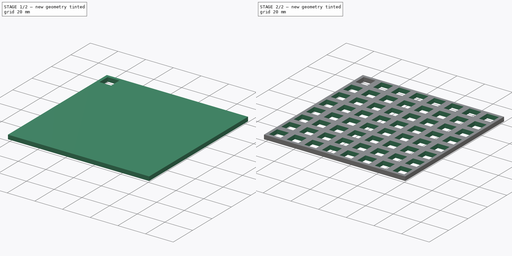
[diagram: build sequence overview — one tinted view per stage of 2, left to right]
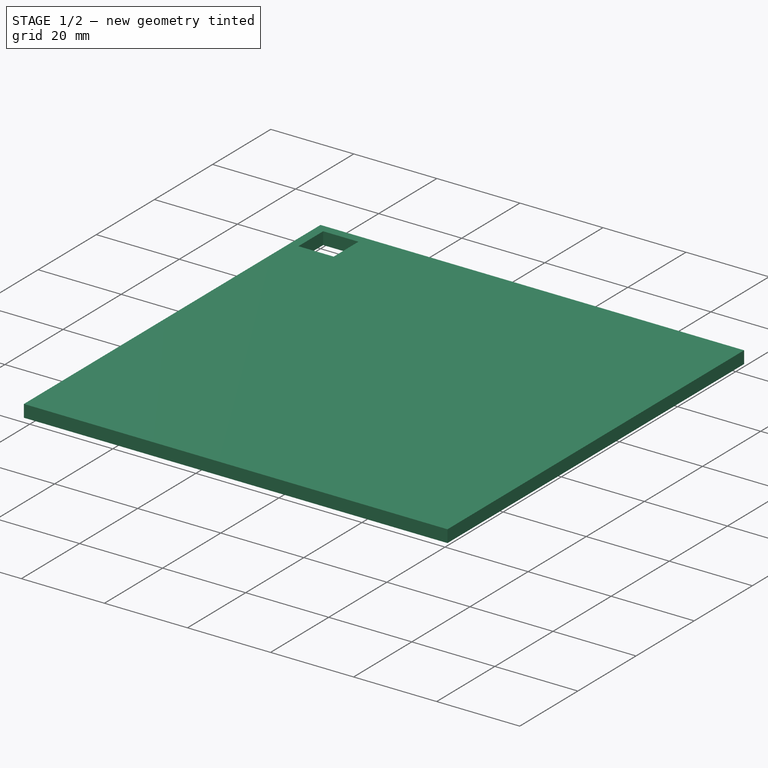
[diagram: stage 1 of 2 — iso view after this stage's code; geometry added in this stage tinted green]
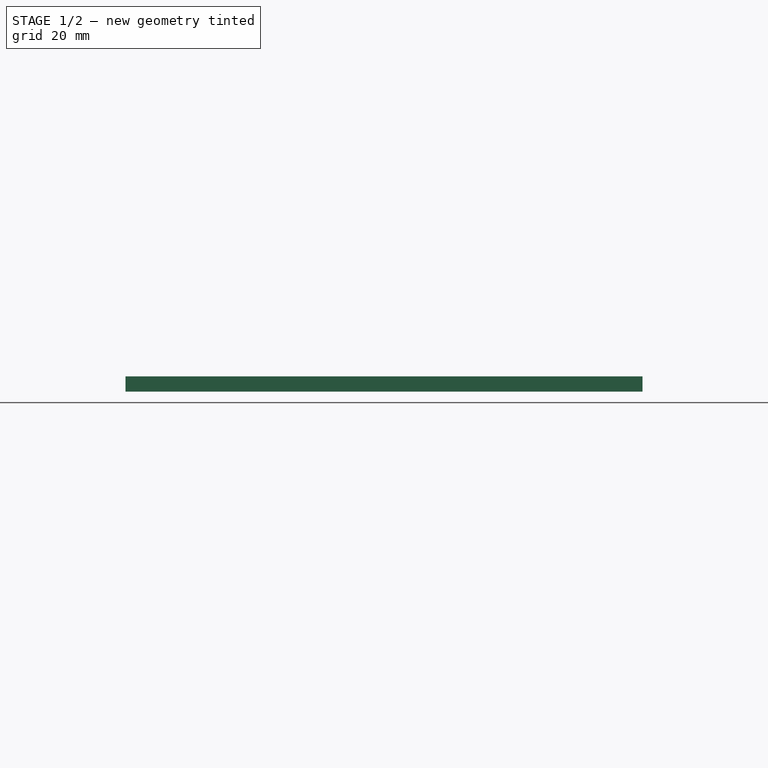
[diagram: stage 1 of 2 — front view after this stage's code; geometry added in this stage tinted green]
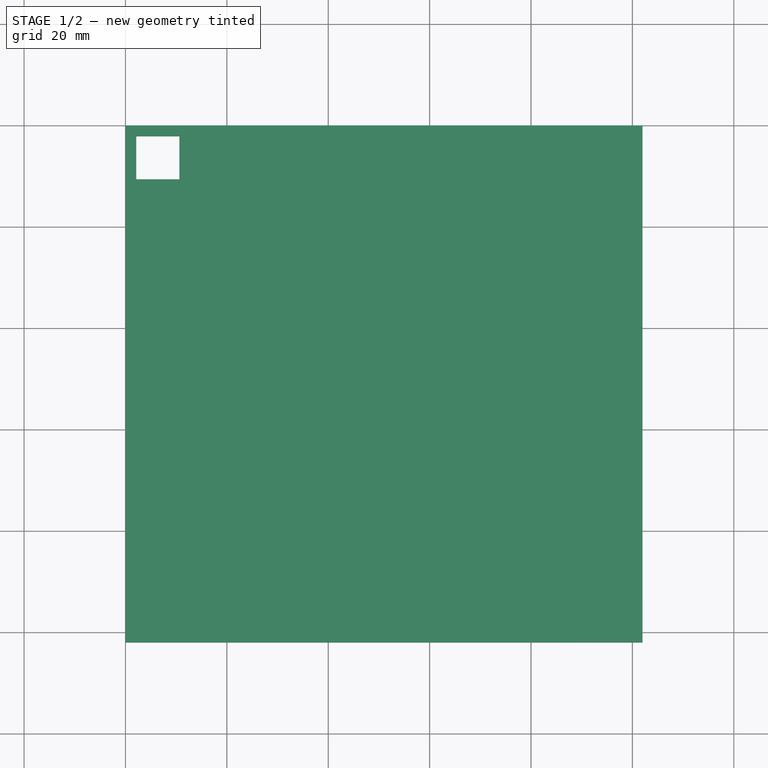
[diagram: stage 1 of 2 — top view after this stage's code; geometry added in this stage tinted green]
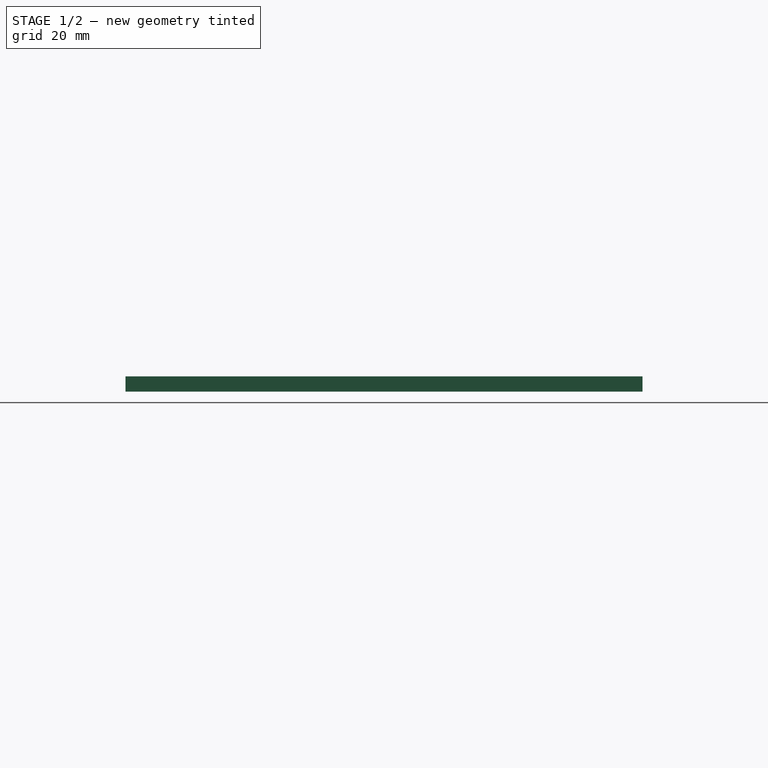
[diagram: stage 1 of 2 — right view after this stage's code; geometry added in this stage tinted green]
FCSTD DOCUMENT  (FreeCAD 0.19R24291 (Git))
Label: modular_stamp_base_v1
License: Other
LicenseURL: https://ohwr.org/project/cernohl/wikis/Documents/CERN-OHL-version-2
objects: Sketcher::SketchObject×2, PartDesign::LinearPattern×2, PartDesign::Pad×1, PartDesign::Pocket×1, PartDesign::MultiTransform×1, PartDesign::Body×1, Part::Part2DObjectPython×1
note: 11 computed .brp shape members not serialized (recipe doc carries the construction recipe); baked Part::Feature solids carry a one-line shape summary decoded from their .brp

FEATURE [Sketcher::SketchObject] Sketch
  FullyConstrained = true
  MapMode = 5
  Support = -> [XY_Plane]
  sketch-geometry (4):
    g0: LineSegment StartX=0 StartY=0 StartZ=0 EndX=102 EndY=0 EndZ=0
    g1: LineSegment StartX=102 StartY=0 StartZ=0 EndX=102 EndY=-102 EndZ=0
    g2: LineSegment StartX=102 StartY=-102 StartZ=0 EndX=0 EndY=-102 EndZ=0
    g3: LineSegment StartX=0 StartY=-102 StartZ=0 EndX=0 EndY=0 EndZ=0
  constraints (11):
    c: Coincident(g0,g1)
    c: Coincident(g1,g2)
    c: Coincident(g2,g3)
    c: Coincident(g3,g0)
    c: Horizontal(g0)
    c: Horizontal(g2)
    c: Vertical(g1)
    c: Vertical(g3)
    c: Equal(g0,g3)
    c: Coincident(g0,g-1)
    c: DistanceX(g0,g0) = 102
FEATURE [PartDesign::Pad] Pad
  Direction = (1,1,1)
  Length = 3
  Length2 = 100
  Profile = -> Sketch
  Type = 0
FEATURE [Sketcher::SketchObject] Sketch001
  FullyConstrained = true
  MapMode = 5
  Placement = pos=(0,0,3) rot=(0,0,1;0rad)
  Support = -> [Pad]
  expr: Constraints[17] = 4.25 / 2
  sketch-geometry (6):
    g0: LineSegment StartX=2.125 StartY=-2.125 StartZ=0 EndX=10.625 EndY=-2.125 EndZ=0
    g1: LineSegment StartX=10.625 StartY=-2.125 StartZ=0 EndX=10.625 EndY=-10.625 EndZ=0
    g2: LineSegment StartX=10.625 StartY=-10.625 StartZ=0 EndX=2.125 EndY=-10.625 EndZ=0
    g3: LineSegment StartX=2.125 StartY=-10.625 StartZ=0 EndX=2.125 EndY=-2.125 EndZ=0
    g4: LineSegment StartX=2.125 StartY=-2.125 StartZ=0 EndX=0 EndY=-2.125 EndZ=0
    g5: LineSegment StartX=2.125 StartY=-2.125 StartZ=0 EndX=2.125 EndY=0 EndZ=0
  constraints (18):
    c: Coincident(g0,g1)
    c: Coincident(g1,g2)
    c: Coincident(g2,g3)
    c: Coincident(g3,g0)
    c: Horizontal(g0)
    c: Horizontal(g2)
    c: Vertical(g1)
    c: Vertical(g3)
    c: Equal(g3,g0)
    c: DistanceX(g0,g0) = 8.5
    c: Coincident(g4,g0)
    c: PointOnObject(g4,g-2)
    c: Horizontal(g4)
    c: Coincident(g5,g0)
    c: PointOnObject(g5,g-1)
    c: Vertical(g5)
    c: Equal(g5,g4)
    c: DistanceX(g4,g4) = 2.125
FEATURE [PartDesign::Pocket] Pocket
  BaseFeature = -> Pad
  Length = 5
  Length2 = 100
  Profile = -> Sketch001
  Type = 1
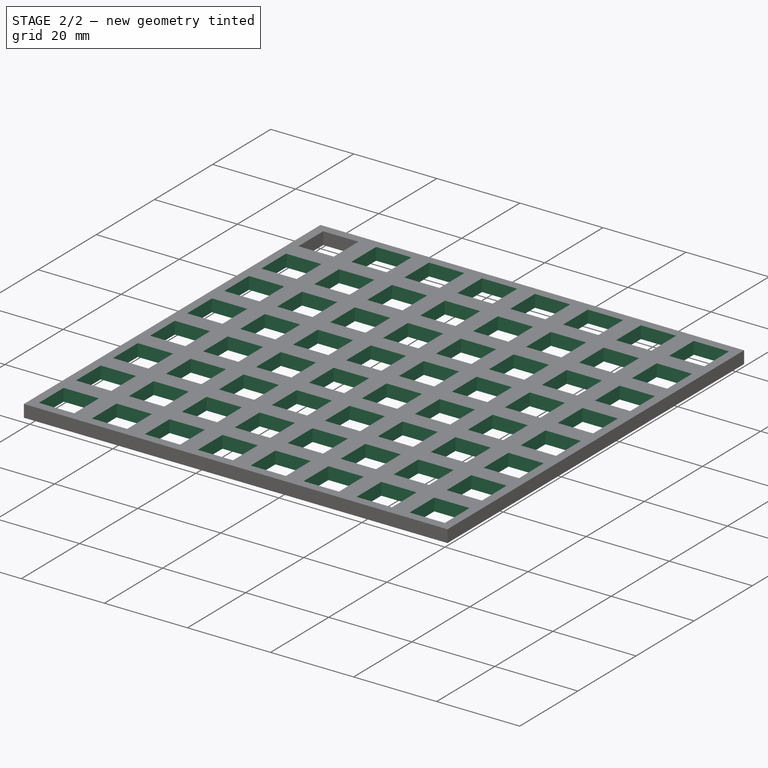
[diagram: stage 2 of 2 — iso view after this stage's code; geometry added in this stage tinted green]
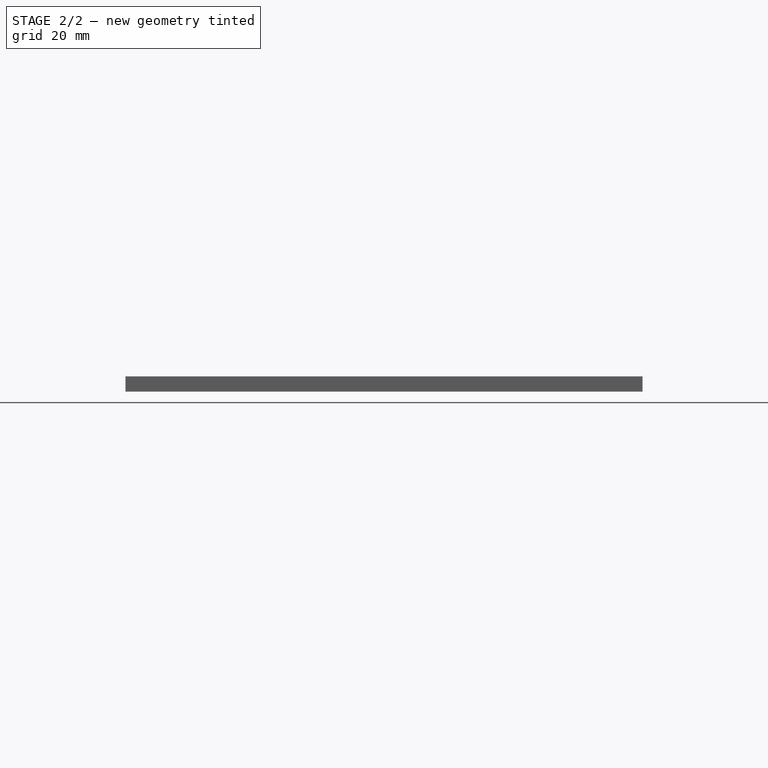
[diagram: stage 2 of 2 — front view after this stage's code; geometry added in this stage tinted green]
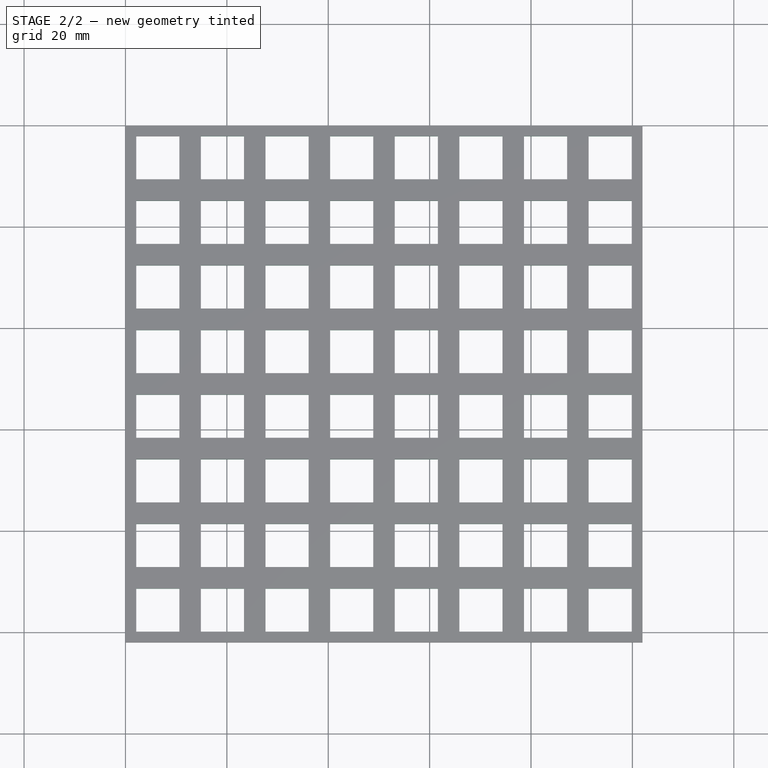
[diagram: stage 2 of 2 — top view after this stage's code; geometry added in this stage tinted green]
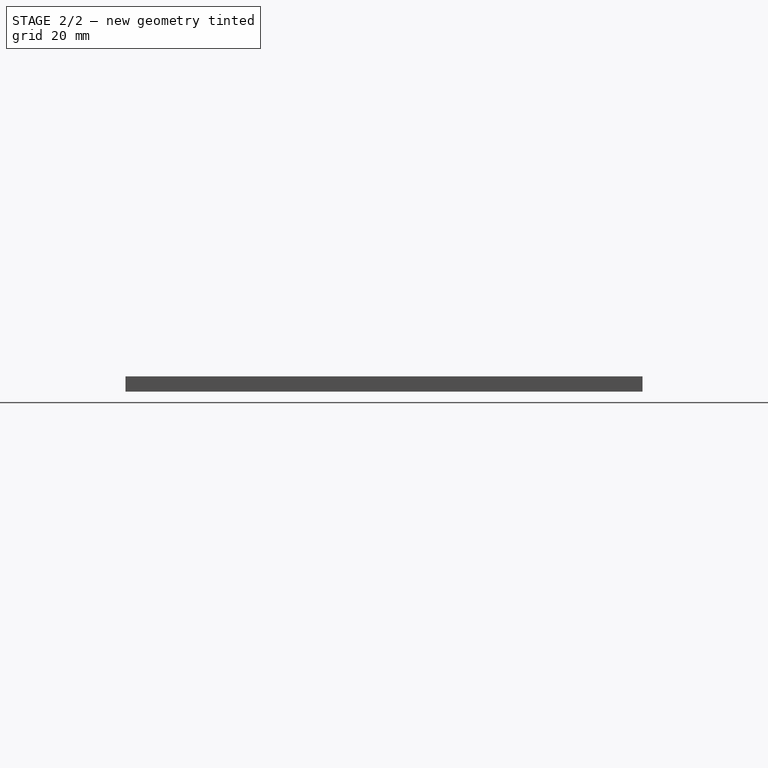
[diagram: stage 2 of 2 — right view after this stage's code; geometry added in this stage tinted green]
FEATURE [PartDesign::LinearPattern] LinearPattern
  Direction = -> Sketch001 [H_Axis]
  Length = 102
  Occurrences = 9
FEATURE [PartDesign::LinearPattern] LinearPattern001
  Direction = -> Sketch001 [V_Axis]
  Length = 102
  Occurrences = 9
  Reversed = true
FEATURE [PartDesign::MultiTransform] MultiTransform
  BaseFeature = -> Pocket
  Originals = -> [Pocket]
  Transformations = -> [LinearPattern,LinearPattern001]
FEATURE [PartDesign::Body] Body
  Group = -> [Sketch,Pad,Sketch001,Pocket,MultiTransform,LinearPattern,LinearPattern001]
  Origin = -> Origin
  Tip = -> MultiTransform
FEATURE [Part::Part2DObjectPython] Shape2DView  # Draft 2D object (typed FeaturePython)
  Base = -> Body
  FuseArch = false
  HiddenLines = false
  InPlace = true
  Projection = (0,0,1)
  ProjectionMode = 0
  SegmentLength = 0.05
  Tessellation = false
  VisibleOnly = false
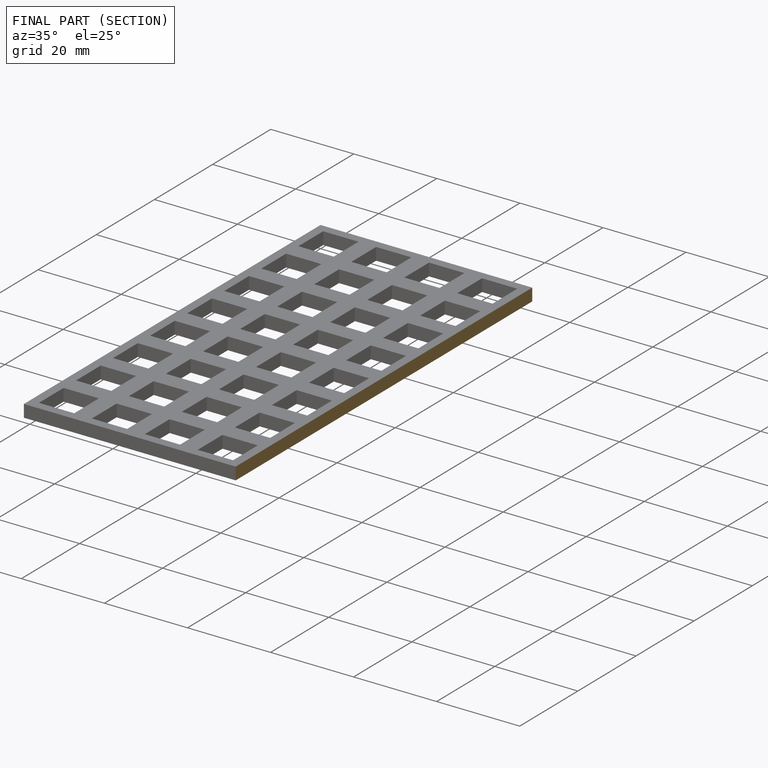
[diagram: finished part — half-section view (interior)]
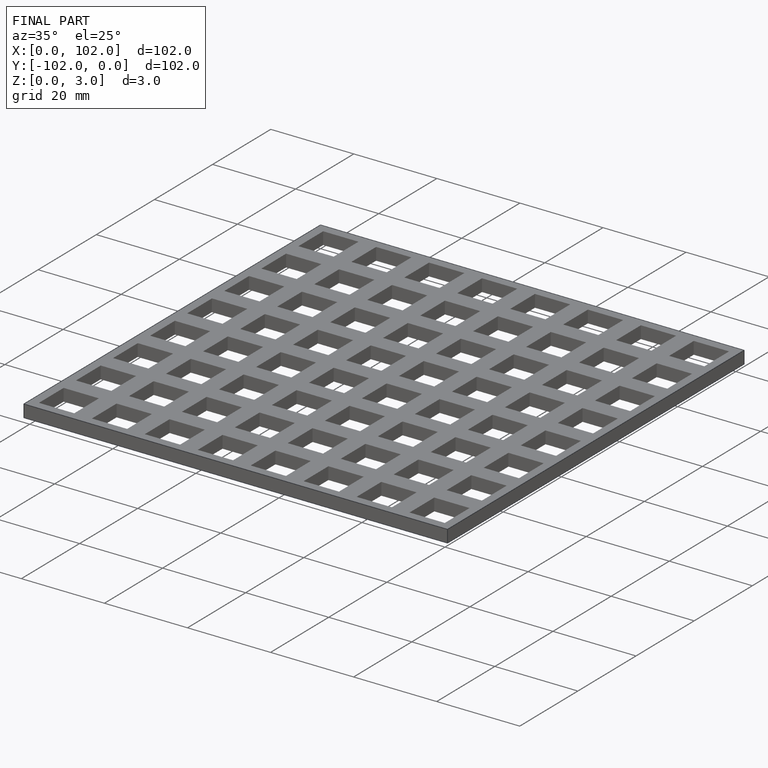
[diagram: finished part — iso view with bounding-box wireframe]
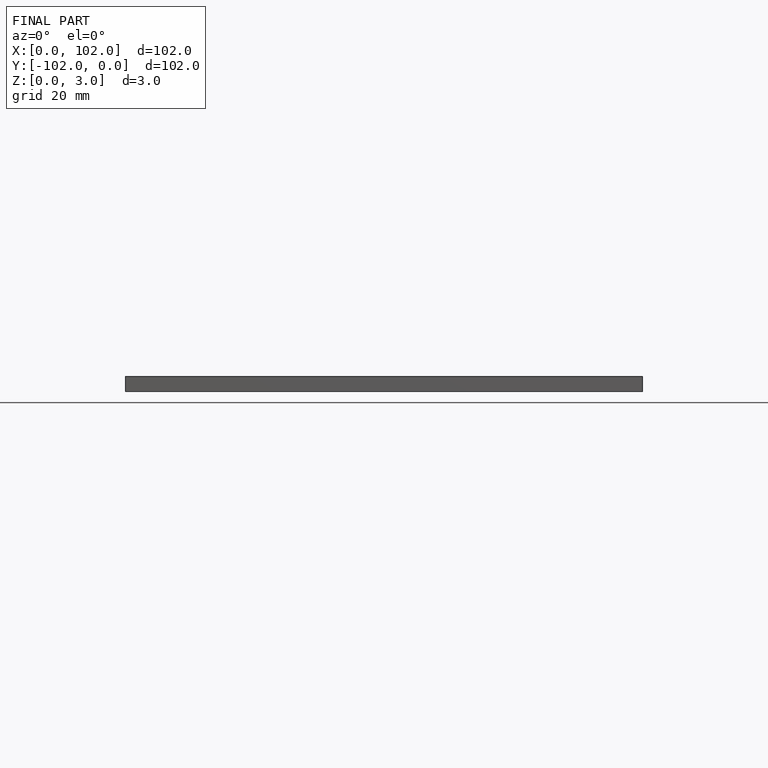
[diagram: finished part — front view with bounding-box wireframe]
